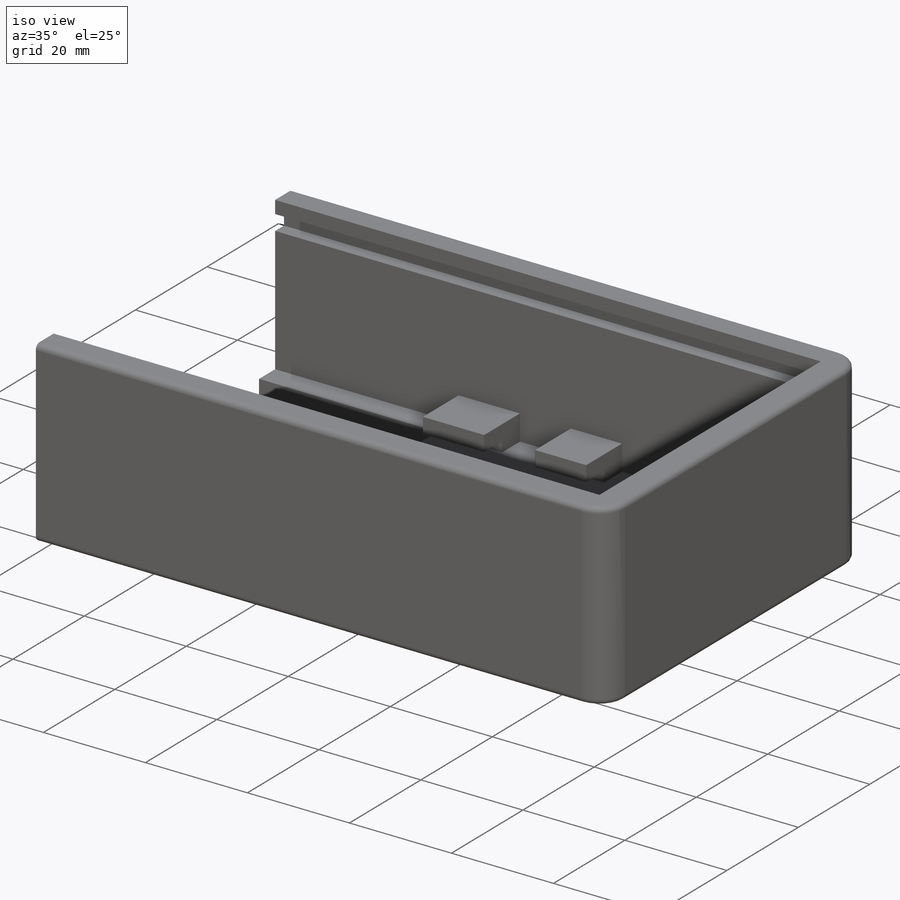
[diagram: iso view]
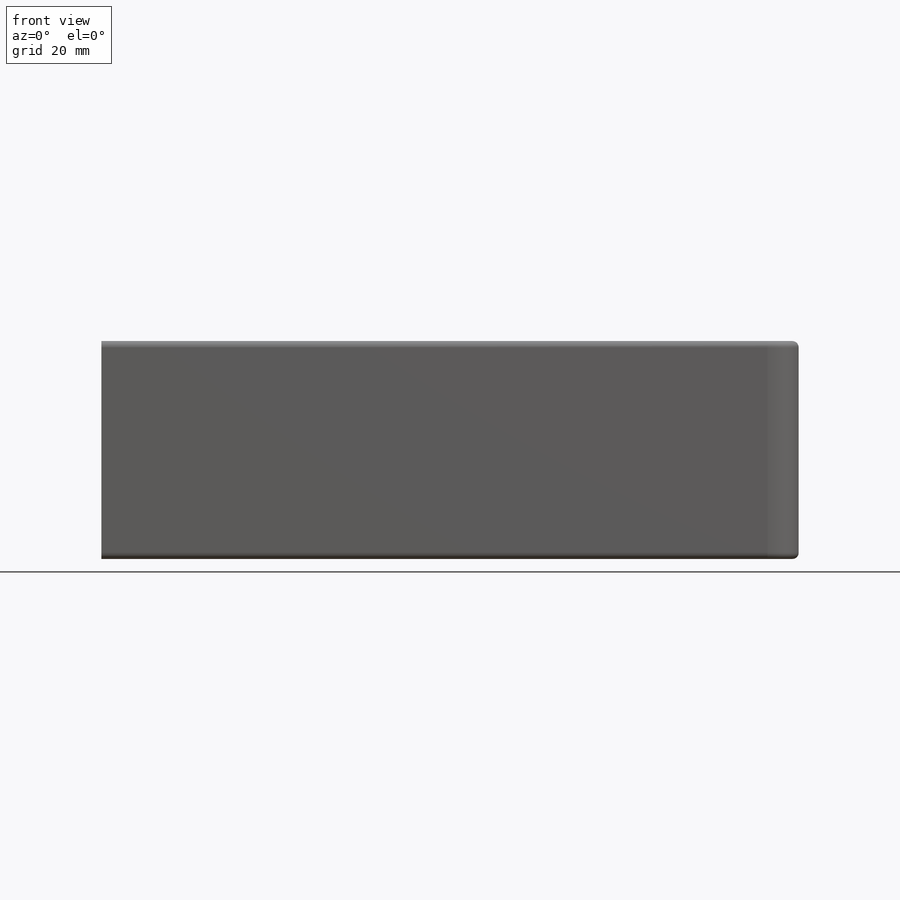
[diagram: front view]
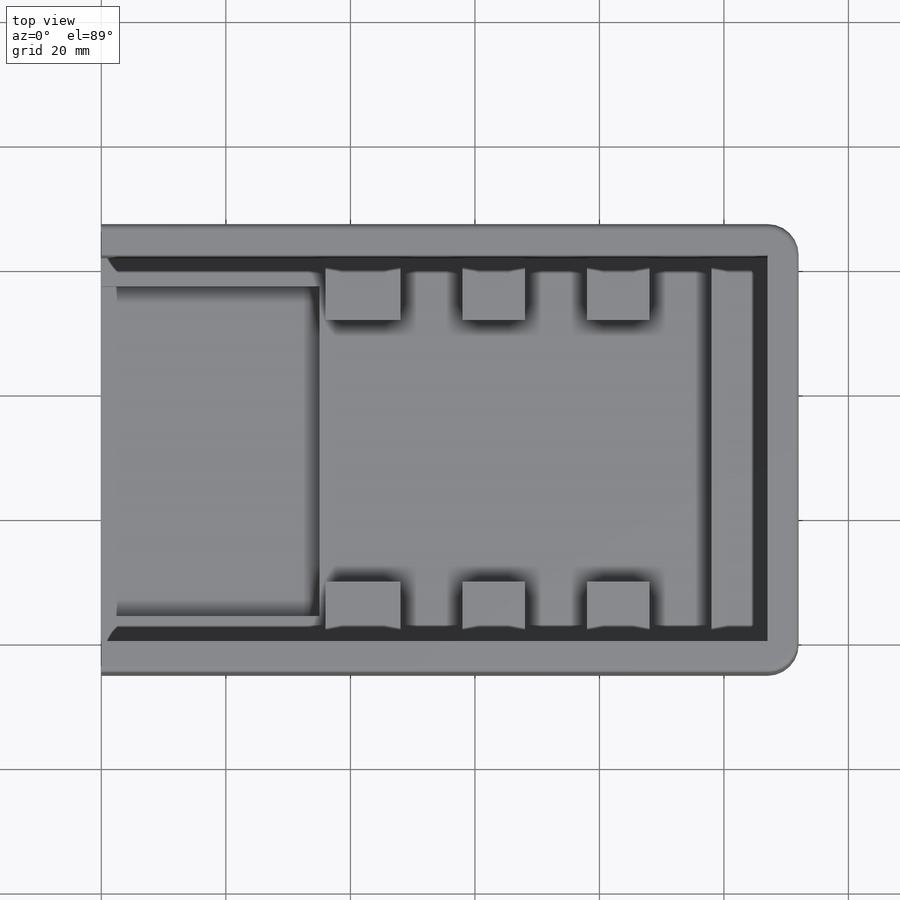
[diagram: top view]
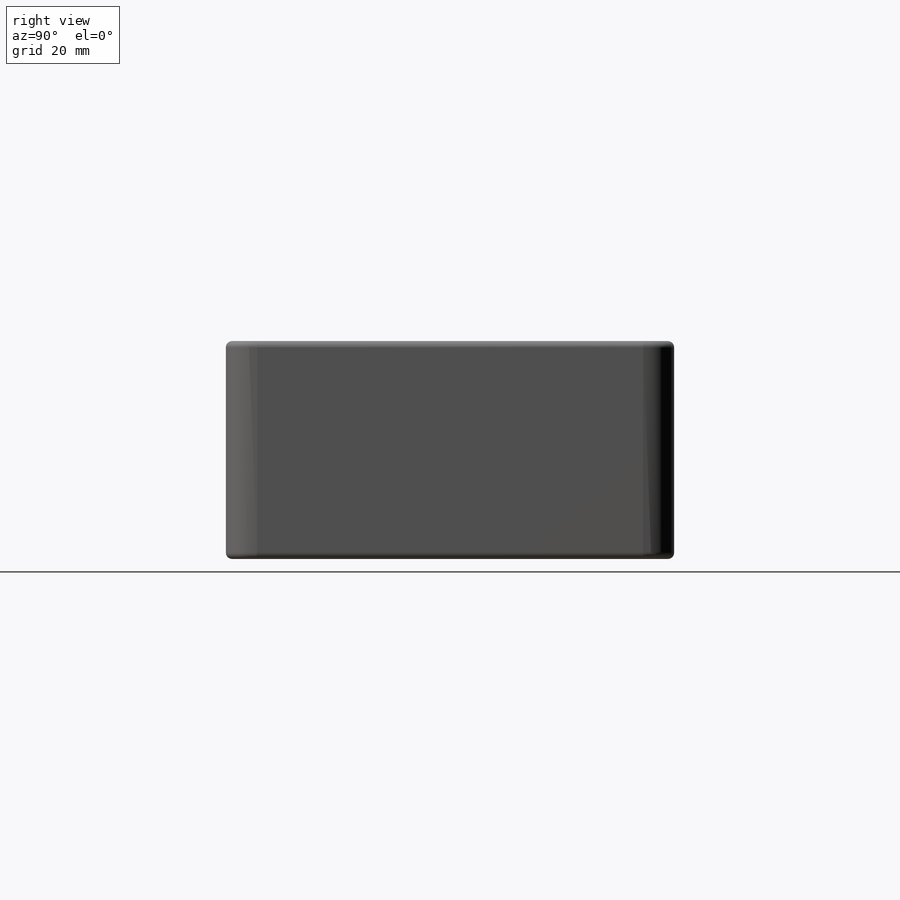
[diagram: right view]
SOLIDWORKS PART (.sldprt)
format: sldprt  version: not decoded by parser v0  size: 1,059,840 bytes
history: native  units: mm
features: sketch x13, cut_extrude x12, plane x3, extrude x2, fillet x2, material x1, pattern_linear x1 (+9 scaffold rows collapsed)
feature tree (43):
  scaffold x9  (default folders/planes/origin — collapsed)
  material  "Matériau <non spécifié>"
  plane  "Plan de face"
  plane  "Plan de dessus"
  plane  "Plan de droite"
  sketch  "Esquisse1"  dims[D1=107.0mm D2=62.0mm]
  extrude  "Boss.-Extru.1"  Depth=10mm
  sketch  "Esquisse3"  dims[c1.D1=71.0mm c1.D2=0.0mm c1.D3=0.0mm c1.D4=0.0mm c2.D2=0.0mm c2.D3=0.0mm c2.D4=0.0mm]
  cut_extrude  "Enlèv. mat.-Extru.1"  Depth=5mm
  sketch  "Esquisse4"  dims[D1=2.0mm D2=4.5mm D3=4.5mm D4=53.0mm]
  cut_extrude  "Enlèv. mat.-Extru.2"  Depth=66mm
  sketch  "Esquisse7"  dims[D1=5.0mm D2=5.0mm D3=5.0mm D4=0.0mm D5=0.0mm D6=0.0mm]
  extrude  "Boss.-Extru.3"  Depth=30mm
  sketch  "Esquisse8"  dims[D1=2.5mm D2=2.5mm D3=3.0mm D4=2.5mm]
  cut_extrude  "Enlèv. mat.-Extru.4"  Depth=110mm
  sketch  "Esquisse9"  dims[D1=4.5mm D2=0.0mm D3=4.5mm D4=35.0mm]
  cut_extrude  "Enlèv. mat.-Extru.5"  Depth=3mm
  sketch  "Esquisse10"  dims[D1=60.0mm D2=80.0mm D3=6.0mm D4=6.0mm D5=5.0mm D6=112.0mm]
  cut_extrude  "Enlèv. mat.-Extru.6"  Depth=0.5mm
  fillet  "Congé1"  Radius=5mm
  cut_extrude  "Congé3"  Depth=0.25mm
  cut_extrude  "Congé4"  Depth=5mm
  sketch  "Esquisse12"  dims[D1=11.0mm D2=16.0mm]
  cut_extrude  "Enlèv. mat.-Extru.7"  Depth=0.2mm
  cut_extrude  "Congé5"  Depth=1mm
  sketch  "Esquisse13"  dims[D1=10.0mm D2=10.0mm D3=62.0mm]
  cut_extrude  "Enlèv. mat.-Extru.8"  [1 undecoded]
  sketch  "Esquisse15"  dims[D1=13.0mm D2=10.0mm BaseDepth=2.0mm TopDepth=1.5mm Width=2.0mm HookHeight=2.0mm Overhang=1.0mm BodyHeight=5.0mm Draft=0.0deg LipHeight=1.0mm]
  sketch  "Esquisse16"
  fillet  "Ergot de fixation2"  Radius=2mm BaseDepth=2mm TopDepth=1.5mm Width=2mm HookHeight=2mm Overhang=1mm BodyHeight=5mm Draft=0deg LipHeight=1mm
  sketch  "Esquisse18"  dims[D1=0.0mm D2=90.0mm D3=14.0mm]
  cut_extrude  "Enlèv. mat.-Extru.9"  [1 undecoded]
  sketch  "Esquisse20"
  cut_extrude  "Enlèv. mat.-Extru.10"  [1 undecoded]
  pattern_linear  "Répétition linéaire4"  Count1=2 Count2=1 Spacing1=12mm Spacing2=62mm
decode coverage: 25 of 30 modeling features carry decoded parameters
note: 3 parameter values undecoded
summary: no parameter record found for 3 features
note: suppression state not decoded; provenance and decode notes live in map.json
